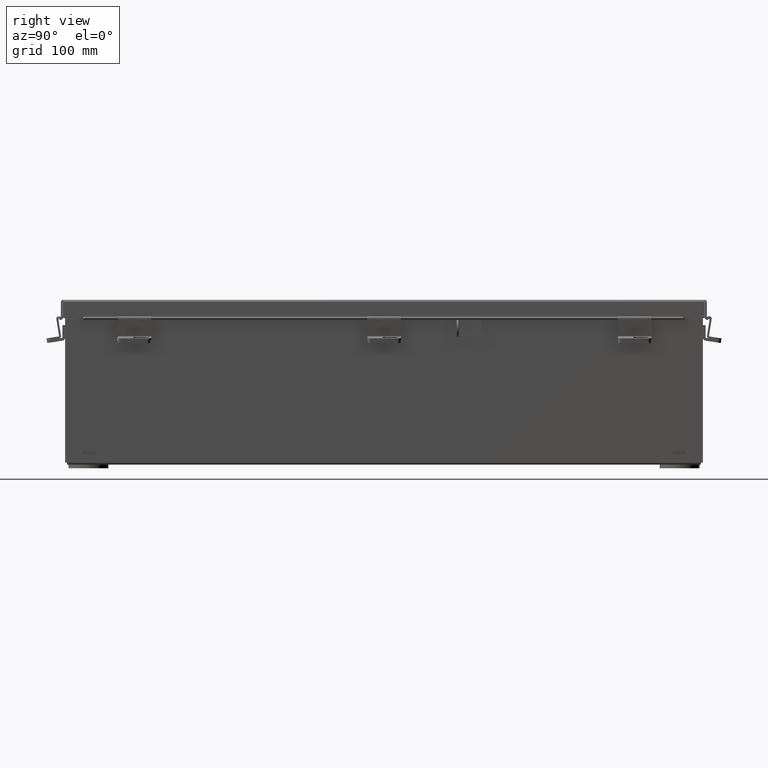
[diagram: clean part render]
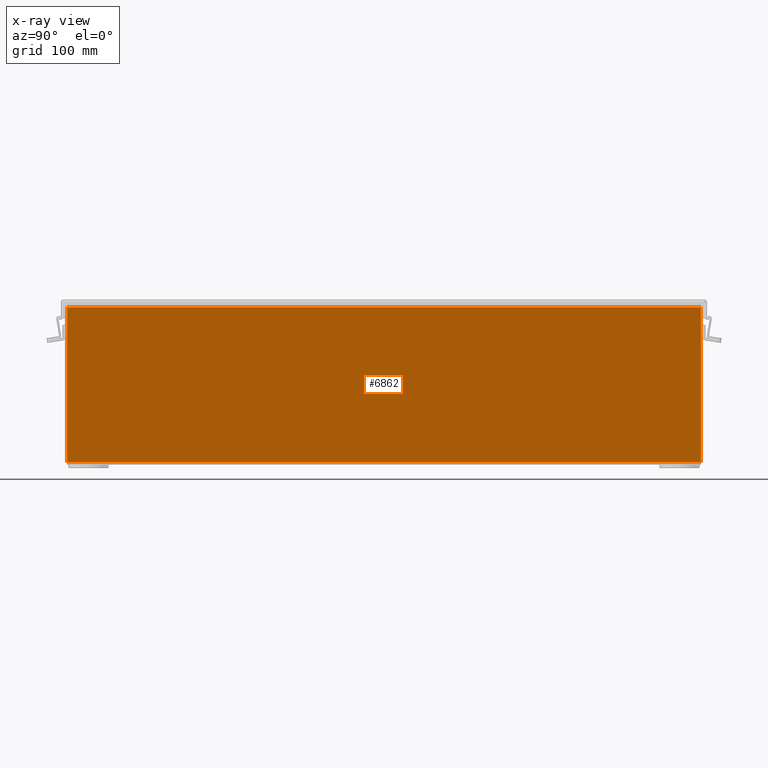
[diagram: x-ray — body ghosted, one internal face saturated and labeled with its STEP entity id]
A machine part, right view, then the same camera in x-ray: the body is ghosted and one INTERNAL B-rep face — a face not visible from any outside direction — is saturated and labeled: STEP entity #6862.
In plain terms, the highlighted planar face has unit normal (-1, 0, 0).
Its self-contained STEP definition (entity closure, byte-faithful):
#516 = VECTOR ( 'NONE', #9631, 39.37007874015748100 ) ;
#1041 = FACE_OUTER_BOUND ( 'NONE', #1300, .T. ) ;
#1300 = EDGE_LOOP ( 'NONE', ( #7420, #4179, #5723, #5902 ) ) ;
#1616 = VECTOR ( 'NONE', #18177, 39.37007874015748100 ) ;
#2186 = EDGE_CURVE ( 'NONE', #18974, #14897, #7748, .T. ) ;
#2917 = CARTESIAN_POINT ( 'NONE',  ( 2.925299999999999600, -11.92530000000000000, 0.01299999999999967200 ) ) ;
#3522 = CARTESIAN_POINT ( 'NONE',  ( 2.925300000000019600, 11.92529999999999500, 5.837600000000000100 ) ) ;
#3951 = PLANE ( 'NONE',  #4099 ) ;
#4099 = AXIS2_PLACEMENT_3D ( 'NONE', #21217, #5668, #17783 ) ;
#4179 = ORIENTED_EDGE ( 'NONE', *, *, #6380, .F. ) ;
#5668 = DIRECTION ( 'NONE',  ( -1.000000000000000000, 0.0000000000000000000, 3.455316574900958600E-015 ) ) ;
#5723 = ORIENTED_EDGE ( 'NONE', *, *, #2186, .F. ) ;
#5757 = VERTEX_POINT ( 'NONE', #6242 ) ;
#5902 = ORIENTED_EDGE ( 'NONE', *, *, #14979, .F. ) ;
#6070 = CARTESIAN_POINT ( 'NONE',  ( 2.925300000000018200, 11.92529999999999300, 5.837600000000000100 ) ) ;
#6122 = LINE ( 'NONE', #12375, #14810 ) ;
#6242 = CARTESIAN_POINT ( 'NONE',  ( 2.925300000000018200, -11.92530000000000000, 5.837600000000000100 ) ) ;
#6380 = EDGE_CURVE ( 'NONE', #14897, #5757, #10268, .T. ) ;
#6862 = ADVANCED_FACE ( 'NONE', ( #1041 ), #3951, .T. ) ;
#7420 = ORIENTED_EDGE ( 'NONE', *, *, #11929, .F. ) ;
#7748 = LINE ( 'NONE', #17259, #21021 ) ;
#9631 = DIRECTION ( 'NONE',  ( -3.455316574900958600E-015, -0.0000000000000000000, -1.000000000000000000 ) ) ;
#10268 = LINE ( 'NONE', #6070, #1616 ) ;
#11929 = EDGE_CURVE ( 'NONE', #5757, #15176, #13818, .T. ) ;
#12375 = CARTESIAN_POINT ( 'NONE',  ( 2.925299999999999600, -11.92530000000000000, 0.01300000000000011600 ) ) ;
#13565 = CARTESIAN_POINT ( 'NONE',  ( 2.925299999999999600, 11.92529999999999300, 0.01300000000000163500 ) ) ;
#13818 = LINE ( 'NONE', #21748, #516 ) ;
#14810 = VECTOR ( 'NONE', #19412, 39.37007874015748100 ) ;
#14897 = VERTEX_POINT ( 'NONE', #3522 ) ;
#14979 = EDGE_CURVE ( 'NONE', #15176, #18974, #6122, .T. ) ;
#15176 = VERTEX_POINT ( 'NONE', #2917 ) ;
#17259 = CARTESIAN_POINT ( 'NONE',  ( 2.925300000000019600, 11.92529999999999500, 5.850600000000000000 ) ) ;
#17783 = DIRECTION ( 'NONE',  ( 3.455316574900958600E-015, 0.0000000000000000000, 1.000000000000000000 ) ) ;
#18177 = DIRECTION ( 'NONE',  ( -0.0000000000000000000, -1.000000000000000000, -0.0000000000000000000 ) ) ;
#18974 = VERTEX_POINT ( 'NONE', #13565 ) ;
#19169 = DIRECTION ( 'NONE',  ( 3.455316574900958600E-015, -3.735477378271307500E-016, 1.000000000000000000 ) ) ;
#19412 = DIRECTION ( 'NONE',  ( 1.583087998225295500E-031, 1.000000000000000000, 4.581600452255731000E-017 ) ) ;
#21021 = VECTOR ( 'NONE', #19169, 39.37007874015748100 ) ;
#21217 = CARTESIAN_POINT ( 'NONE',  ( 2.925299999999999600, 0.0000000000000000000, -1.036394832596379800E-014 ) ) ;
#21748 = CARTESIAN_POINT ( 'NONE',  ( 2.925299999999999600, -11.92530000000000000, 0.0000000000000000000 ) ) ;